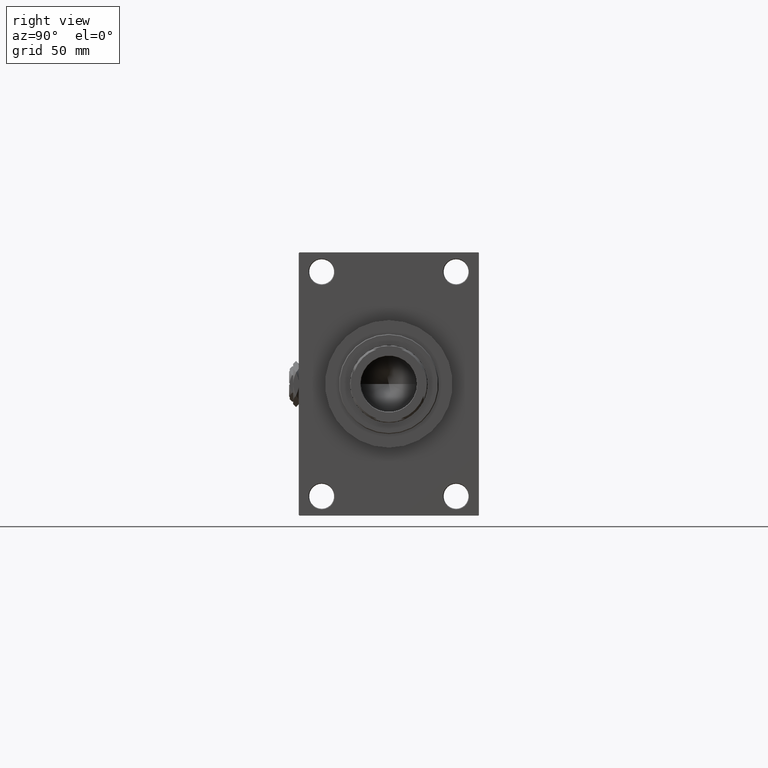
[diagram: clean part render]
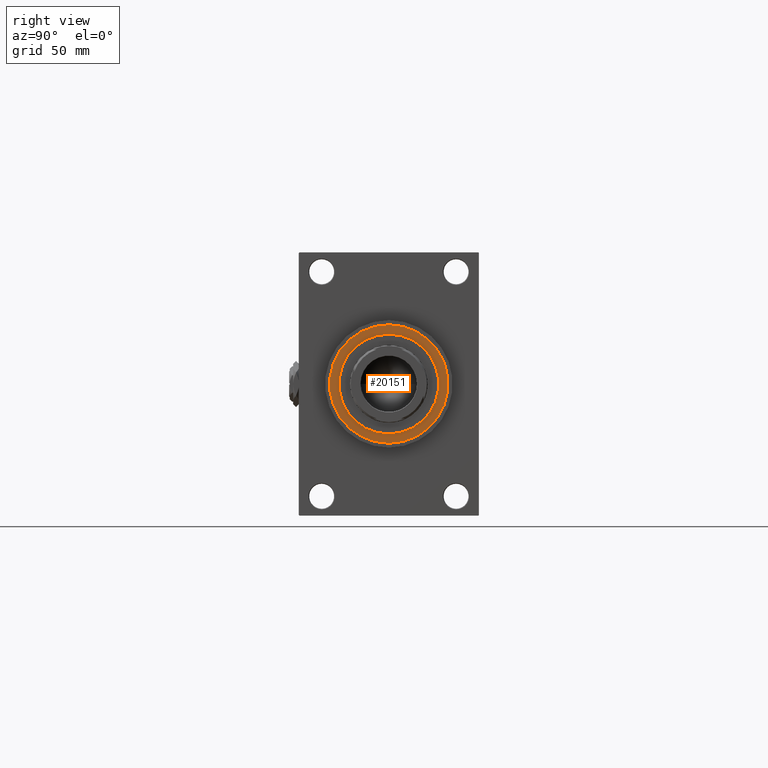
[diagram: same view with one face highlighted and labeled with its STEP entity id]
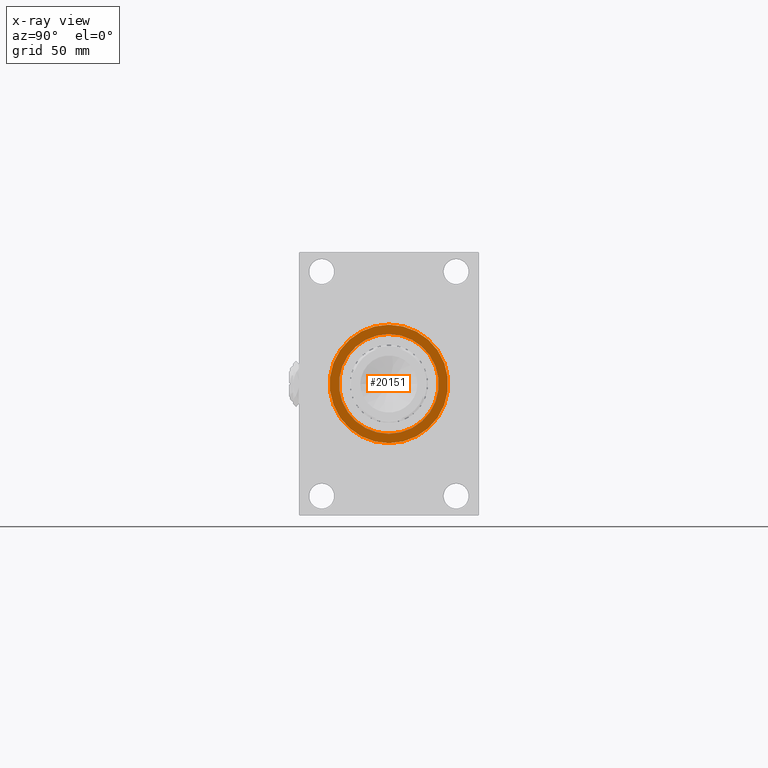
[diagram: x-ray of the same camera — body ghosted, the highlighted face saturated]
A machine part, right view. The second image highlights one B-rep face of the part: STEP entity #20151.
The next image is the same camera in x-ray: the body ghosted, the highlighted face saturated — about 0% of this face is hidden behind the body in this view.
In plain terms, the highlighted planar face has unit normal (1, -0, -0).
Its self-contained STEP definition (entity closure, byte-faithful):
#172 = DIRECTION ( 'NONE',  ( 1.000000000000000000, 0.000000000000000000, 0.000000000000000000 ) ) ;
#1705 = CIRCLE ( 'NONE', #34716, 42.75000000000000000 ) ;
#2390 = VERTEX_POINT ( 'NONE', #41763 ) ;
#4030 = AXIS2_PLACEMENT_3D ( 'NONE', #46182, #27014, #42408 ) ;
#4622 = VERTEX_POINT ( 'NONE', #41653 ) ;
#5611 = DIRECTION ( 'NONE',  ( 0.000000000000000000, 0.000000000000000000, 1.000000000000000000 ) ) ;
#5757 = VERTEX_POINT ( 'NONE', #6785 ) ;
#6785 = CARTESIAN_POINT ( 'NONE',  ( 36.00000000000000000, 4.408728476930470856E-15, 43.25999999999999801 ) ) ;
#9127 = DIRECTION ( 'NONE',  ( 0.000000000000000000, 0.000000000000000000, 1.000000000000000000 ) ) ;
#11671 = CARTESIAN_POINT ( 'NONE',  ( 42.75000000000000000, 5.235365066354935472E-15, 43.25999999999999801 ) ) ;
#12673 = FACE_BOUND ( 'NONE', #24917, .T. ) ;
#14789 = DIRECTION ( 'NONE',  ( 1.000000000000000000, 0.000000000000000000, 0.000000000000000000 ) ) ;
#15391 = AXIS2_PLACEMENT_3D ( 'NONE', #24266, #9127, #47964 ) ;
#15454 = CIRCLE ( 'NONE', #43646, 36.00000000000000000 ) ;
#15558 = DIRECTION ( 'NONE',  ( 0.000000000000000000, 0.000000000000000000, 1.000000000000000000 ) ) ;
#17567 = ORIENTED_EDGE ( 'NONE', *, *, #22387, .T. ) ;
#18225 = AXIS2_PLACEMENT_3D ( 'NONE', #33343, #5611, #44697 ) ;
#19811 = ORIENTED_EDGE ( 'NONE', *, *, #31564, .F. ) ;
#20151 = ADVANCED_FACE ( 'NONE', ( #12673, #32566 ), #28051, .T. ) ;
#22387 = EDGE_CURVE ( 'NONE', #4622, #46809, #43500, .T. ) ;
#22881 = CARTESIAN_POINT ( 'NONE',  ( 0.000000000000000000, 0.000000000000000000, 43.25999999999999801 ) ) ;
#24177 = EDGE_CURVE ( 'NONE', #46809, #4622, #1705, .T. ) ;
#24266 = CARTESIAN_POINT ( 'NONE',  ( 0.000000000000000000, 0.000000000000000000, 43.25999999999999801 ) ) ;
#24917 = EDGE_LOOP ( 'NONE', ( #19811, #32169 ) ) ;
#27014 = DIRECTION ( 'NONE',  ( 0.000000000000000000, 0.000000000000000000, 1.000000000000000000 ) ) ;
#28051 = PLANE ( 'NONE',  #15391 ) ;
#30308 = CIRCLE ( 'NONE', #18225, 36.00000000000000000 ) ;
#31564 = EDGE_CURVE ( 'NONE', #2390, #5757, #15454, .T. ) ;
#32169 = ORIENTED_EDGE ( 'NONE', *, *, #44522, .F. ) ;
#32566 = FACE_OUTER_BOUND ( 'NONE', #47652, .T. ) ;
#33343 = CARTESIAN_POINT ( 'NONE',  ( 0.000000000000000000, 0.000000000000000000, 43.25999999999999801 ) ) ;
#34447 = CARTESIAN_POINT ( 'NONE',  ( 0.000000000000000000, 0.000000000000000000, 43.25999999999999801 ) ) ;
#34716 = AXIS2_PLACEMENT_3D ( 'NONE', #34447, #46282, #14789 ) ;
#39957 = ORIENTED_EDGE ( 'NONE', *, *, #24177, .T. ) ;
#41653 = CARTESIAN_POINT ( 'NONE',  ( -42.75000000000000000, 0.000000000000000000, 43.25999999999999801 ) ) ;
#41763 = CARTESIAN_POINT ( 'NONE',  ( -36.00000000000000000, 0.000000000000000000, 43.25999999999999801 ) ) ;
#42408 = DIRECTION ( 'NONE',  ( 1.000000000000000000, 0.000000000000000000, 0.000000000000000000 ) ) ;
#43500 = CIRCLE ( 'NONE', #4030, 42.75000000000000000 ) ;
#43646 = AXIS2_PLACEMENT_3D ( 'NONE', #22881, #15558, #172 ) ;
#44522 = EDGE_CURVE ( 'NONE', #5757, #2390, #30308, .T. ) ;
#44697 = DIRECTION ( 'NONE',  ( 1.000000000000000000, 0.000000000000000000, 0.000000000000000000 ) ) ;
#46182 = CARTESIAN_POINT ( 'NONE',  ( 0.000000000000000000, 0.000000000000000000, 43.25999999999999801 ) ) ;
#46282 = DIRECTION ( 'NONE',  ( 0.000000000000000000, 0.000000000000000000, 1.000000000000000000 ) ) ;
#46809 = VERTEX_POINT ( 'NONE', #11671 ) ;
#47652 = EDGE_LOOP ( 'NONE', ( #17567, #39957 ) ) ;
#47964 = DIRECTION ( 'NONE',  ( 1.000000000000000000, 0.000000000000000000, -0.000000000000000000 ) ) ;